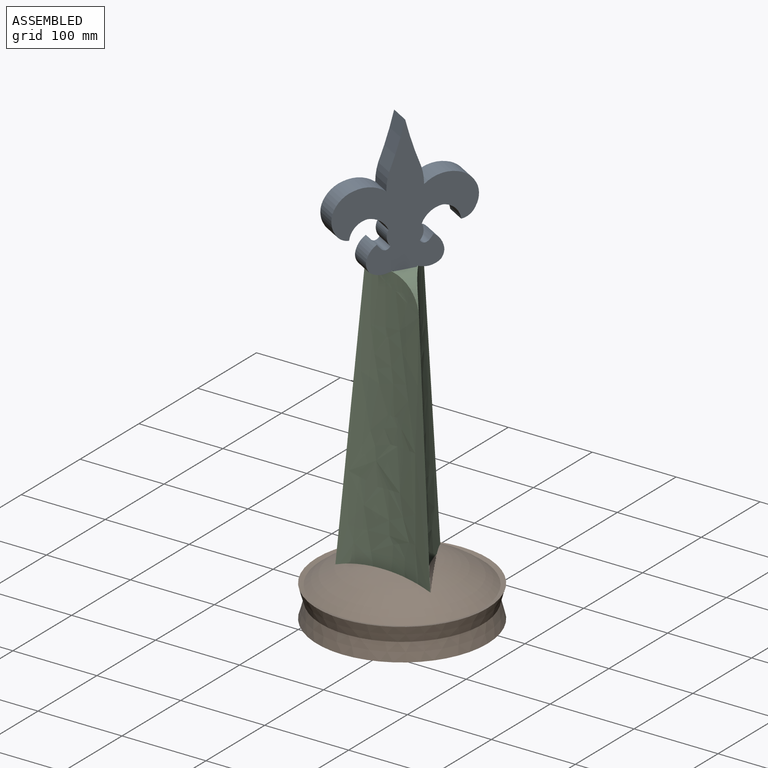
[diagram: assembled view]
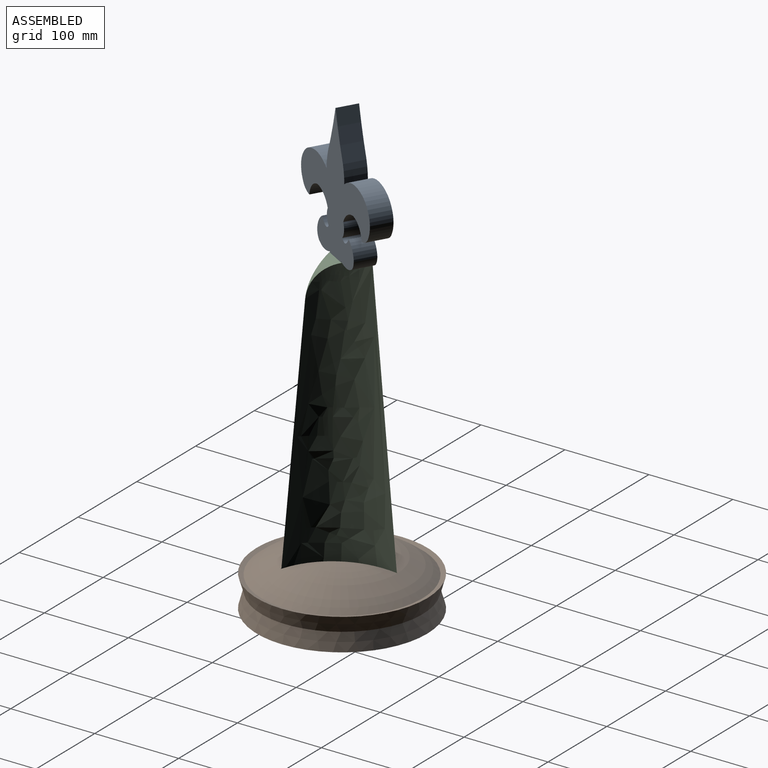
[diagram: assembled view, second angle]
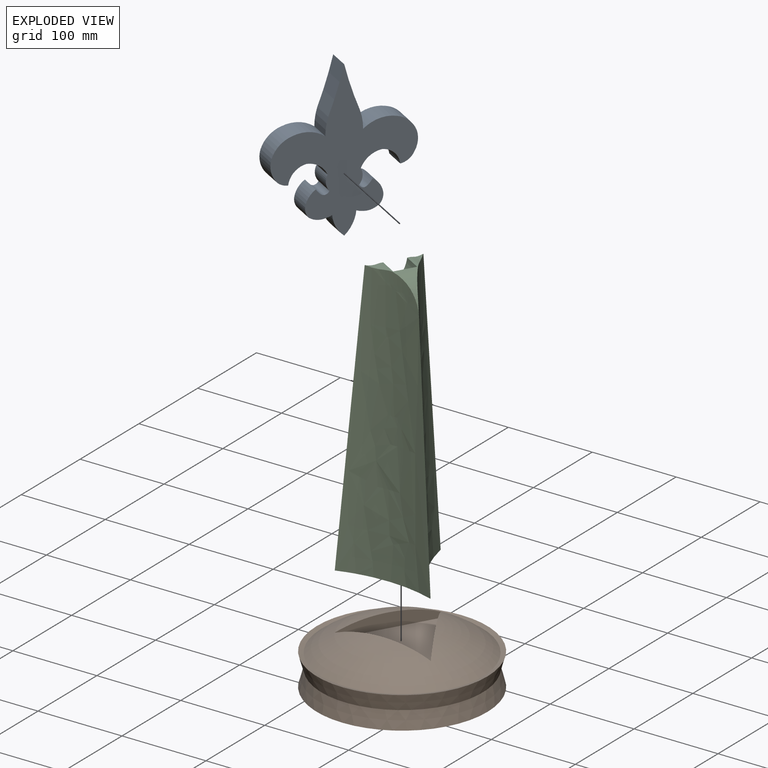
[diagram: exploded view]
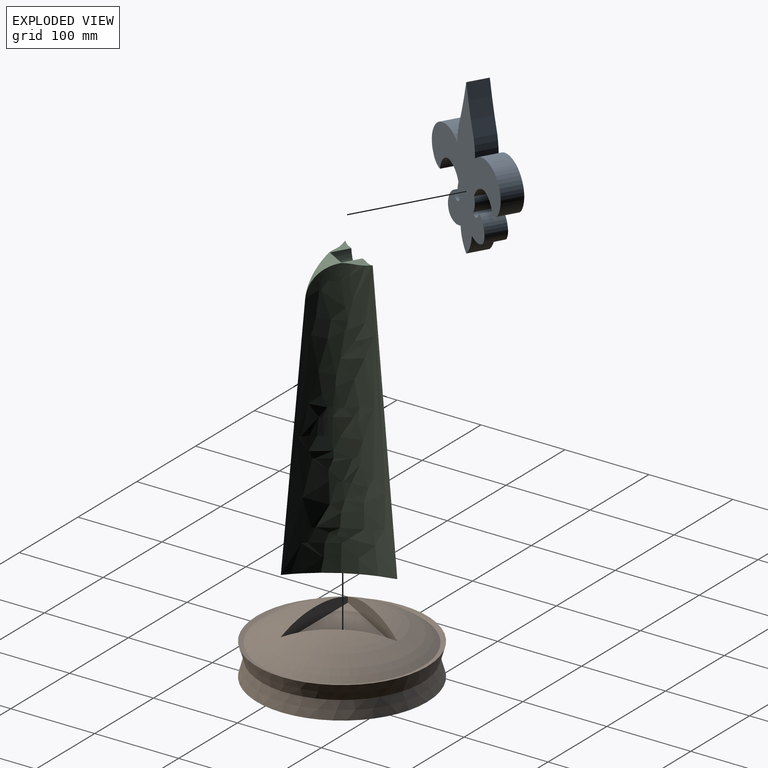
[diagram: exploded view, second angle]
ASSEMBLY  parts=3 mates=3
PART A: 36 faces, bbox 159x25.4x184.5 mm
  f0: cylinder r=421.99mm len=53.31mm, axis (0,1,0), area 1423.8mm2, adj f1,f33,f34,f35
  f1: cylinder r=64.49mm len=25.4mm, axis (0,1,0), area 521.4mm2, adj f0,f2,f34,f35
  f2: cylinder r=39.16mm len=35.75mm, axis (0,1,0), area 962.5mm2, adj f1,f3,f34,f35
  f3: cylinder r=31.79mm len=25.4mm, axis (0,1,0), area 788.9mm2, adj f2,f4,f34,f35
  f4: cylinder r=26.85mm len=25.4mm, axis (0,1,0), area 575.1mm2, adj f3,f5,f34,f35
  f5: cylinder r=18.4mm len=25.4mm, axis (0,1,0), area 493.3mm2, adj f4,f6,f34,f35
  f6: cylinder r=22.2mm len=25.4mm, axis (0,1,0), area 757.8mm2, adj f5,f7,f34,f35
  f7: cylinder r=26.17mm len=25.4mm, axis (0,1,0), area 742.9mm2, adj f6,f8,f34,f35
  f8: cylinder r=15.6mm len=25.4mm, axis (0,1,0), area 488.7mm2, adj f7,f9,f34,f35
  f9: cylinder r=6.75mm len=25.4mm, axis (0,1,0), area 167mm2, adj f8,f10,f34,f35
  f10: cylinder r=8.44mm len=25.4mm, axis (0,1,0), area 168.2mm2, adj f9,f11,f34,f35
  f11: cylinder r=26.77mm len=25.4mm, axis (0,1,0), area 153.5mm2, adj f10,f12,f34,f35
  f12: cylinder r=24.31mm len=25.4mm, axis (0,1,0), area 543.6mm2, adj f11,f13,f34,f35
  f13: cylinder r=15mm len=25.4mm, axis (0,1,0), area 321.8mm2, adj f12,f14,f34,f35
  f14: cylinder r=22.32mm len=25.4mm, axis (0,1,0), area 532.9mm2, adj f13,f15,f34,f35
  f15: cylinder r=15.85mm len=25.4mm, axis (0,1,0), area 143.4mm2, adj f14,f16,f34,f35
  f16: cylinder r=36.94mm len=25.4mm, axis (0,1,0), area 727.9mm2, adj f15,f17,f34,f35
  f17: cylinder r=36.94mm len=25.4mm, axis (0,1,0), area 727.9mm2, adj f16,f18,f34,f35
  f18: cylinder r=15.85mm len=25.4mm, axis (0,1,0), area 143.4mm2, adj f17,f19,f34,f35
  f19: cylinder r=22.32mm len=25.4mm, axis (0,1,0), area 532.9mm2, adj f18,f20,f34,f35
  f20: cylinder r=15mm len=25.4mm, axis (0,1,0), area 321.8mm2, adj f19,f21,f34,f35
  f21: cylinder r=24.31mm len=25.4mm, axis (0,1,0), area 543.6mm2, adj f20,f22,f34,f35
  f22: cylinder r=26.77mm len=25.4mm, axis (0,1,0), area 153.5mm2, adj f21,f23,f34,f35
  f23: cylinder r=8.44mm len=25.4mm, axis (0,1,0), area 168.2mm2, adj f22,f24,f34,f35
  f24: cylinder r=6.75mm len=25.4mm, axis (0,1,0), area 167mm2, adj f23,f25,f34,f35
  f25: cylinder r=15.6mm len=25.4mm, axis (0,1,0), area 488.7mm2, adj f24,f26,f34,f35
  f26: cylinder r=26.17mm len=25.4mm, axis (0,1,0), area 742.9mm2, adj f25,f27,f34,f35
  f27: cylinder r=22.2mm len=25.4mm, axis (0,1,0), area 757.8mm2, adj f26,f28,f34,f35
  f28: cylinder r=18.4mm len=25.4mm, axis (0,1,0), area 493.3mm2, adj f27,f29,f34,f35
  f29: cylinder r=26.85mm len=25.4mm, axis (0,1,0), area 575.1mm2, adj f28,f30,f34,f35
  f30: cylinder r=31.79mm len=25.4mm, axis (0,1,0), area 788.9mm2, adj f29,f31,f34,f35
  f31: cylinder r=39.16mm len=35.75mm, axis (0,1,0), area 962.5mm2, adj f30,f32,f34,f35
  f32: cylinder r=64.49mm len=25.4mm, axis (0,1,0), area 521.4mm2, adj f31,f33,f34,f35
  f33: cylinder r=421.99mm len=53.31mm, axis (0,1,0), area 1423.8mm2, adj f0,f32,f34,f35
  f34: plane 184.47x159mm, normal (0,-1,0), area 10998.3mm2, adj f0,f1,f2,f3,f4,f5,f6,f7
  f35: plane 184.47x159mm, normal (0,1,0), area 10998.3mm2, adj f0,f1,f2,f3,f4,f5,f6,f7
PART B: 9 faces, bbox 203.2x203.2x66 mm
  f0: plane 203.2x203.2mm, normal (0,0,-1), area 32429.3mm2, adj f4
  f1: torus R=7.68mm, axis (0,0,-1), area 26776.9mm2, adj f2,f5,f6,f7
  f2: cone r=101.6mm half-angle=74.6deg, axis (0,0,1), area 3496.3mm2, adj f1,f3
  f3: cone r=96.18mm half-angle=16.3deg, axis (0,0,1), area 12036.5mm2, adj f2,f4
  f4: cone r=101.6mm half-angle=15.4deg, axis (0,0,-1), area 12663.5mm2, adj f0,f3
  f5: plane 98.99x57.15mm, normal (0.87,-0.5,0), area 1557.5mm2, adj f1,f6,f7,f8
  f6: plane 114.32x16.96mm, normal (0,1,0), area 1557.5mm2, adj f1,f5,f7,f8
  f7: plane 98.99x57.15mm, normal (-0.87,-0.5,0), area 1557.5mm2, adj f1,f5,f6,f8
  f8: plane 114.3x98.99mm, normal (0,0,1), area 5657.1mm2, adj f5,f6,f7
PART C: 15 faces, bbox 114.6x100.2x333.7 mm
  f0: plane 23.3x3.39mm, normal (0,0,1), area 73.3mm2, adj f2,f4,f7,f12,f14
  f1: plane 23.33x3.39mm, normal (0,0,1), area 73.3mm2, adj f3,f4,f10,f11,f14
  f2: bspline ~330.2x98.85mm, area 29285.9mm2, adj f0,f3,f4,f5,f6,f7,f14
  f3: bspline ~333.68x100.15mm, area 29259.2mm2, adj f1,f2,f4,f5,f8,f9,f10,f14
  f4: bspline ~331.02x114.03mm, area 29215.4mm2, adj f0,f1,f2,f3,f5,f6,f7,f8
  f5: plane 114.03x98.86mm, normal (0,0,-1), area 3485mm2, adj f2,f3,f4
  f6: cylinder r=22.32mm len=17.97mm, axis (0,1,0), area 108.9mm2, adj f2,f4,f7
  f7: cylinder r=15.85mm len=19.41mm, axis (0,1,0), area 38.1mm2, adj f0,f2,f4,f6
  f8: plane 0.05x0.01mm, normal (0,-1,0), area 0mm2, adj f3,f4,f9
  f9: cylinder r=22.32mm len=17.94mm, axis (0,1,0), area 101.4mm2, adj f3,f4,f8,f10
  f10: cylinder r=15.85mm len=19.42mm, axis (0,1,0), area 38.1mm2, adj f1,f3,f4,f9
  f11: cylinder r=36.94mm len=23.43mm, axis (0,1,0), area 632.2mm2, adj f1,f4,f12,f13
  f12: cylinder r=36.94mm len=23.43mm, axis (0,1,0), area 631.9mm2, adj f0,f4,f11,f13
  f13: plane 25.85x23.43mm, normal (0,1,0), area 392.9mm2, adj f11,f12,f14
  f14: cylinder r=44mm len=38.1mm, axis (1,0,0), area 471.6mm2, adj f0,f1,f2,f3,f13
PLACE A rot(axis=(0,0,1),60deg) t=(-326.68,-24.01,692.8)mm
PLACE B rot(axis=(0.93,0.31,0.21),0deg) t=(-329.91,-66.28,239.06)mm
PLACE C rot(axis=(0,0,1),60deg) t=(-329.91,-66.28,288.08)mm
MATE planar C.f13 <-> A.f25  axis (-0.87,0.5,0) through (-323.79,-69.81,609.46)mm
MATE revolute C.f5 <-> B.f8  axis (0,0,1) through (-387.06,-99.27,288.08)mm
MATE cylindrical C.f12 <-> A.f16  axis (-0.87,0.5,0) through (-322.02,-43.47,623.2)mm
